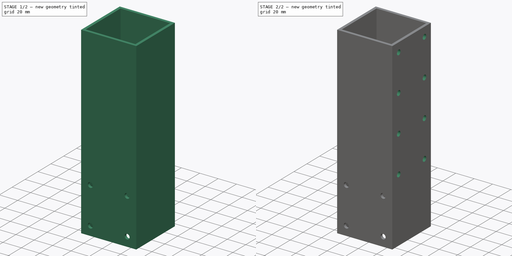
[diagram: build sequence overview — one tinted view per stage of 2, left to right]
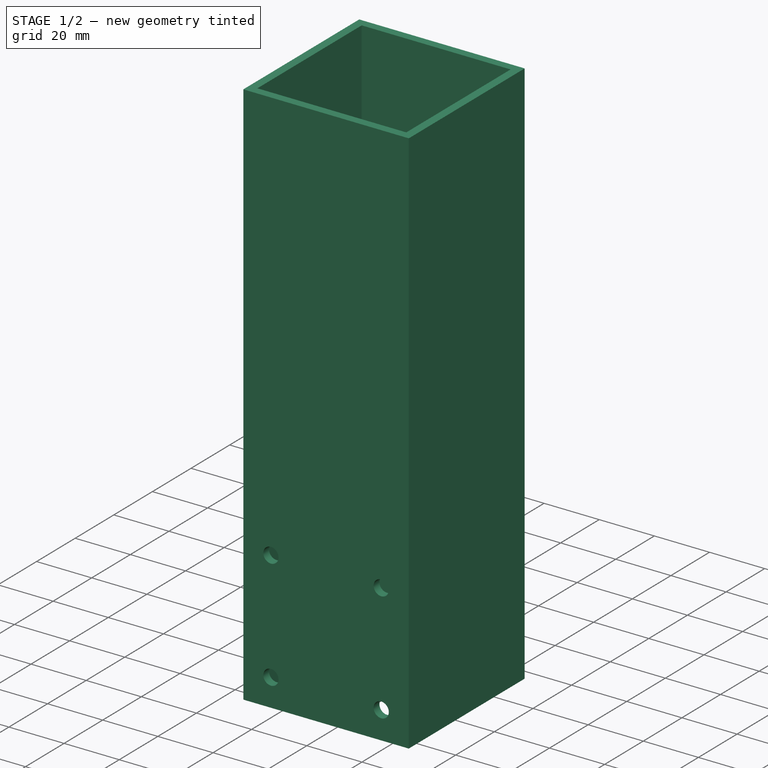
[diagram: stage 1 of 2 — iso view after this stage's code; geometry added in this stage tinted green]
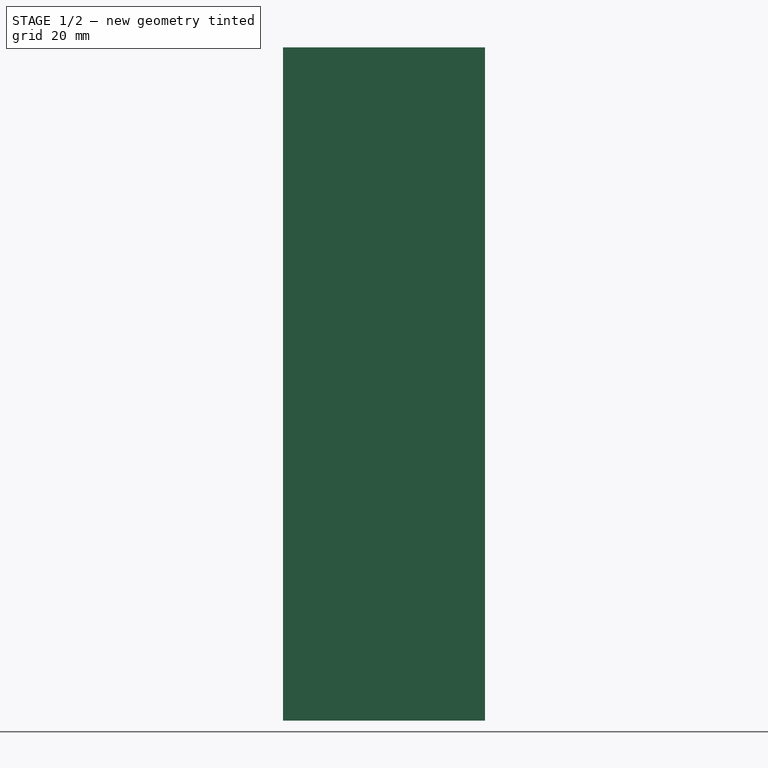
[diagram: stage 1 of 2 — front view after this stage's code; geometry added in this stage tinted green]
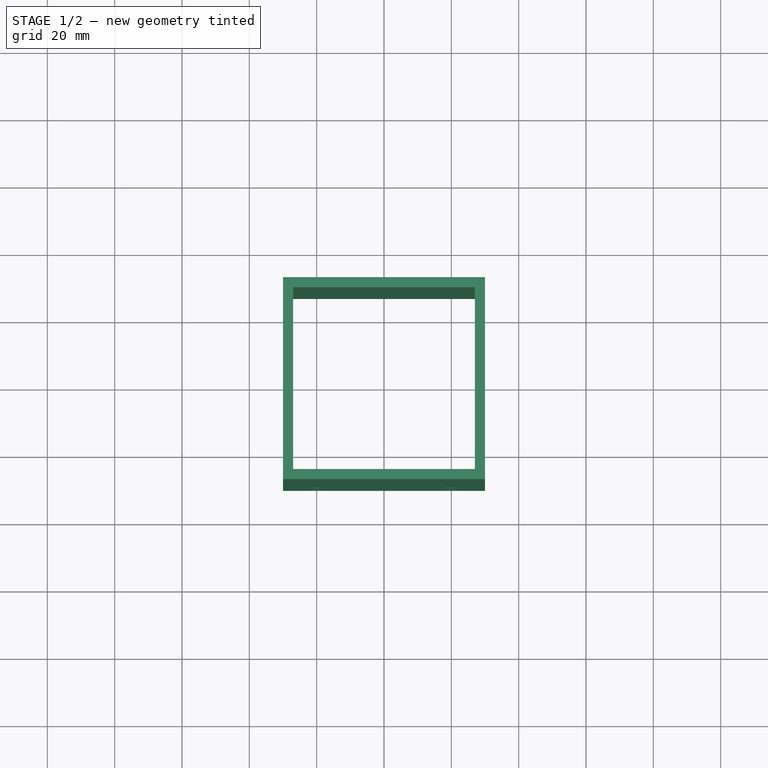
[diagram: stage 1 of 2 — top view after this stage's code; geometry added in this stage tinted green]
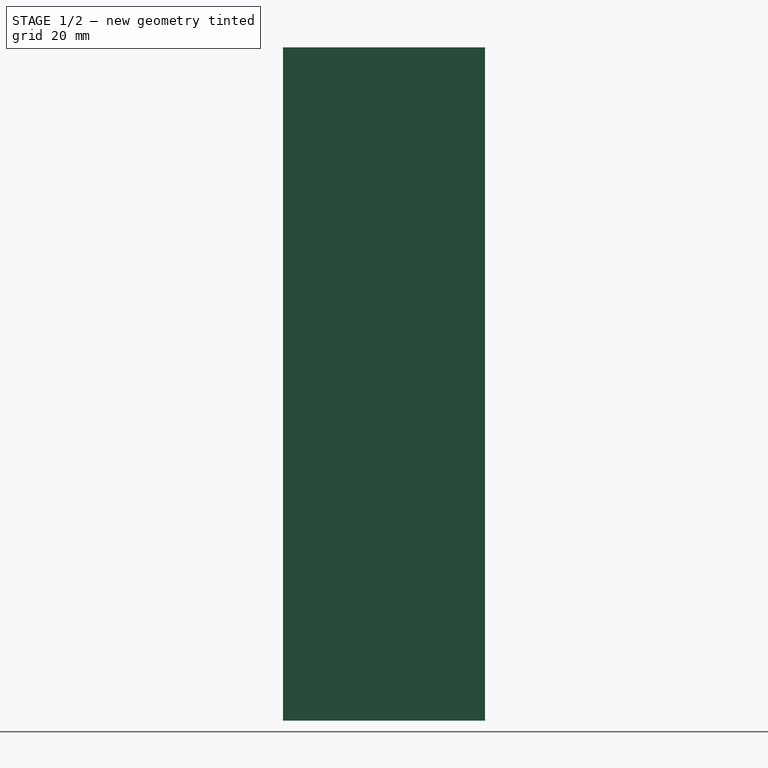
[diagram: stage 1 of 2 — right view after this stage's code; geometry added in this stage tinted green]
FCSTD DOCUMENT  (FreeCAD 0.19R)
Label: portal_column_left
License: All rights reserved
LicenseURL: http://en.wikipedia.org/wiki/All_rights_reserved
objects: PartDesign::CoordinateSystem×6, Sketcher::SketchObject×3, PartDesign::Pocket×2, PartDesign::Pad×1, PartDesign::Body×1
note: 16 computed .brp shape members not serialized (recipe doc carries the construction recipe); baked Part::Feature solids carry a one-line shape summary decoded from their .brp

FEATURE [Sketcher::SketchObject] Sketch
  FullyConstrained = true
  MapMode = 5
  Support = -> [XY_Plane]
  sketch-geometry (8):
    g0: LineSegment StartX=-30 StartY=30 StartZ=0 EndX=30 EndY=30 EndZ=0
    g1: LineSegment StartX=30 StartY=30 StartZ=0 EndX=30 EndY=-30 EndZ=0
    g2: LineSegment StartX=30 StartY=-30 StartZ=0 EndX=-30 EndY=-30 EndZ=0
    g3: LineSegment StartX=-30 StartY=-30 StartZ=0 EndX=-30 EndY=30 EndZ=0
    g4: LineSegment StartX=-27 StartY=27 StartZ=0 EndX=27 EndY=27 EndZ=0
    g5: LineSegment StartX=27 StartY=27 StartZ=0 EndX=27 EndY=-27 EndZ=0
    g6: LineSegment StartX=27 StartY=-27 StartZ=0 EndX=-27 EndY=-27 EndZ=0
    g7: LineSegment StartX=-27 StartY=-27 StartZ=0 EndX=-27 EndY=27 EndZ=0
  constraints (22):
    c: Coincident(g0,g1)
    c: Coincident(g1,g2)
    c: Coincident(g2,g3)
    c: Coincident(g3,g0)
    c: Horizontal(g2)
    c: Vertical(g1)
    c: Coincident(g4,g5)
    c: Coincident(g5,g6)
    c: Coincident(g6,g7)
    c: Coincident(g7,g4)
    c: Horizontal(g4)
    c: Horizontal(g6)
    c: Vertical(g5)
    c: Vertical(g7)
    c: Symmetric(g0,g0,g-2)
    c: Symmetric(g2,g0,g-1)
    c: DistanceY(g3,g3) = 60
    c: DistanceX(g0,g0) = 60
    c: DistanceX(g0,g4) = 3
    c: DistanceY(g4,g0) = 3
    c: DistanceY(g1,g5) = 3
    c: DistanceX(g5,g1) = 3
FEATURE [PartDesign::Pad] Pad
  Direction = (1,1,1)
  Length = 200
  Length2 = 100
  Profile = -> Sketch
  Type = 0
FEATURE [Sketcher::SketchObject] Sketch001
  FullyConstrained = true
  MapMode = 5
  Placement = pos=(0,-30,0) rot=(1,0,0;1.5708rad)
  Support = -> [Pad]
  sketch-geometry (4):
    g0: Circle CenterX=-20 CenterY=50 CenterZ=0 NormalX=0 NormalY=0 NormalZ=1 AngleXU=0 Radius=2.75
    g1: Circle CenterX=20 CenterY=50 CenterZ=0 NormalX=0 NormalY=0 NormalZ=1 AngleXU=0 Radius=2.75
    g2: Circle CenterX=-20 CenterY=10 CenterZ=0 NormalX=0 NormalY=0 NormalZ=1 AngleXU=0 Radius=2.75
    g3: Circle CenterX=20 CenterY=10 CenterZ=0 NormalX=0 NormalY=0 NormalZ=1 AngleXU=0 Radius=2.75
  constraints (10):
    c: Symmetric(g0,g1,g-2)
    c: Symmetric(g2,g3,g-2)
    c: Equal(g0,g1)
    c: Equal(g1,g2)
    c: Equal(g2,g3)
    c: Diameter(g1) = 5.5
    c: DistanceX(g0,g1) = 40
    c: DistanceX(g2,g3) = 40
    c: DistanceY(g2,g0) = 40
    c: DistanceY(g-1,g2) = 10
FEATURE [PartDesign::Pocket] Pocket
  BaseFeature = -> Pad
  Length = 3
  Length2 = 100
  Profile = -> Sketch001
  Type = 0
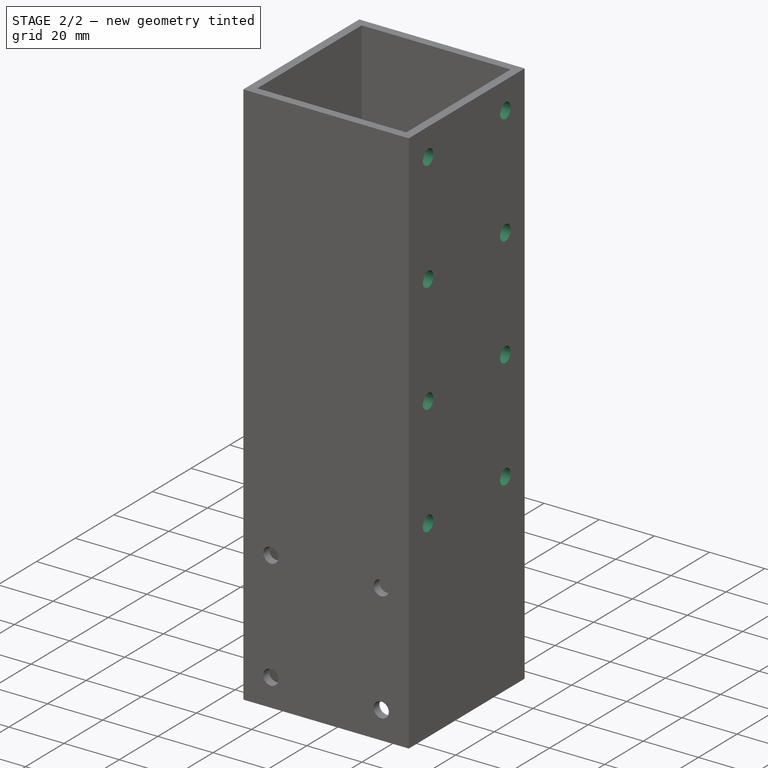
[diagram: stage 2 of 2 — iso view after this stage's code; geometry added in this stage tinted green]
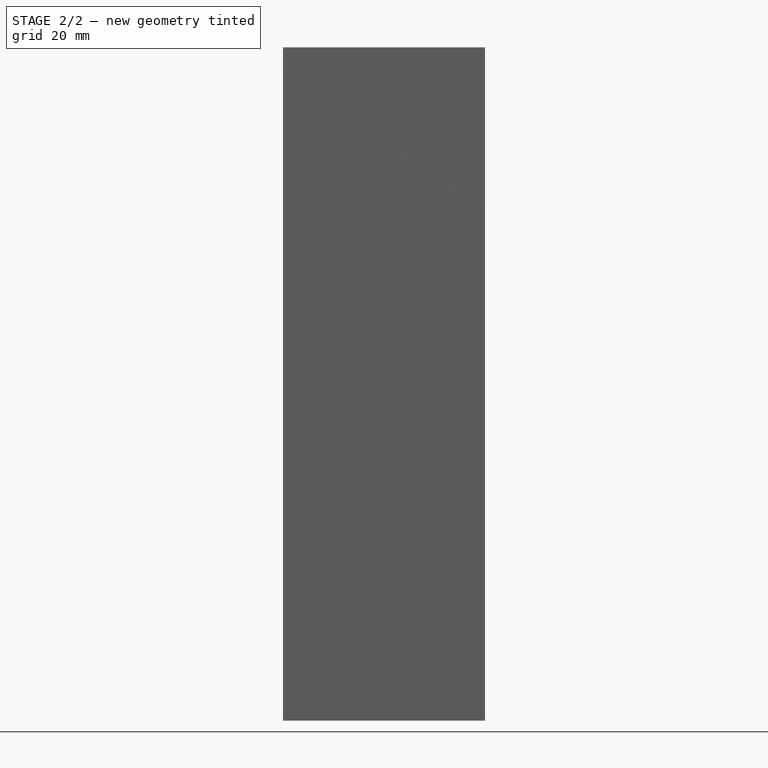
[diagram: stage 2 of 2 — front view after this stage's code; geometry added in this stage tinted green]
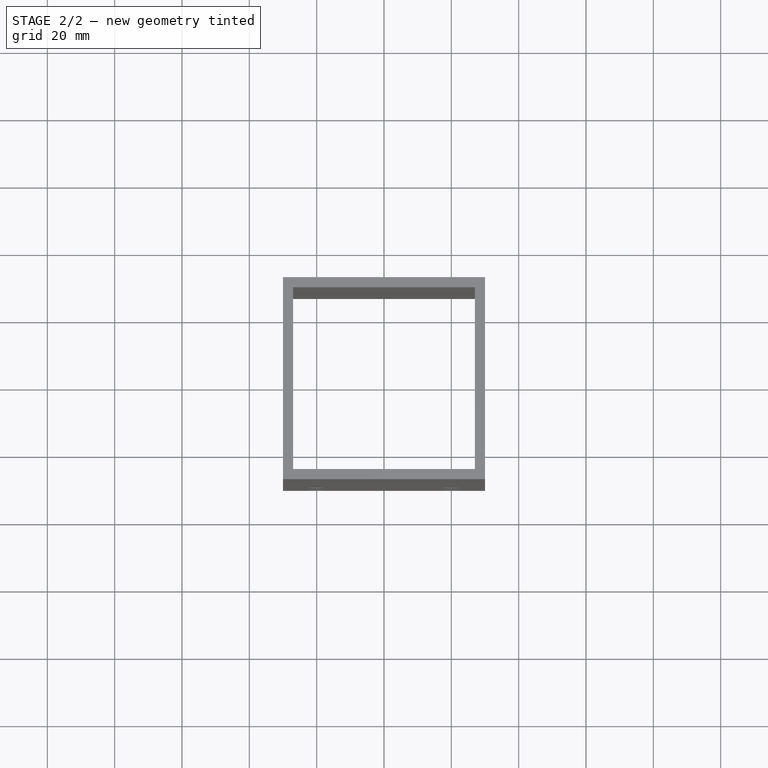
[diagram: stage 2 of 2 — top view after this stage's code; geometry added in this stage tinted green]
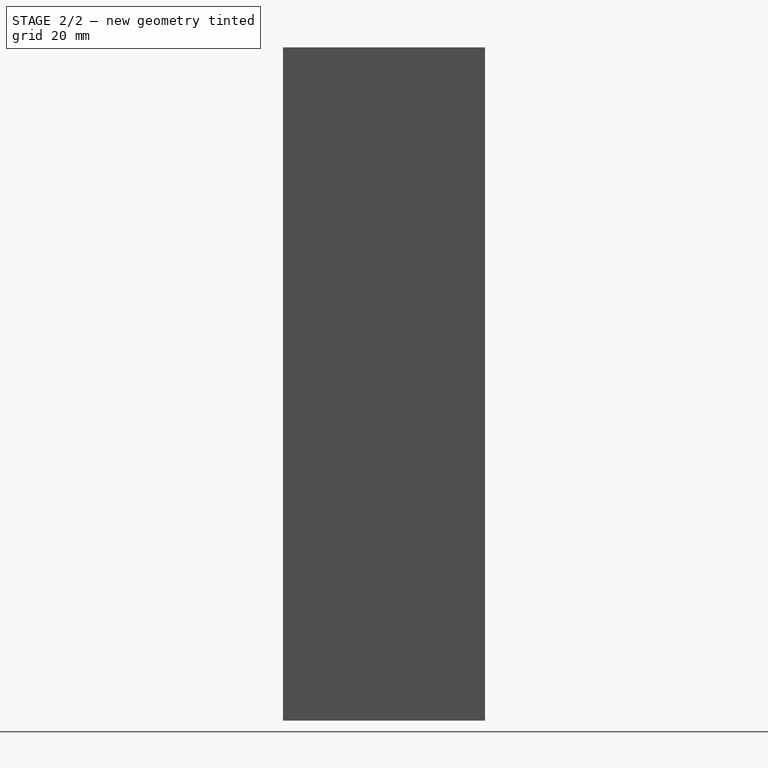
[diagram: stage 2 of 2 — right view after this stage's code; geometry added in this stage tinted green]
FEATURE [PartDesign::CoordinateSystem] LCS_h1
  AttacherType = Attacher::AttachEngine3D
  MapMode = 11
  Placement = pos=(-20,-30,10) rot=(0.57735,-0.57735,0.57735;2.0944rad)
  Support = -> [Pocket]
FEATURE [PartDesign::CoordinateSystem] LCS_h2
  AttacherType = Attacher::AttachEngine3D
  MapMode = 11
  Placement = pos=(20,-30,10) rot=(0.57735,-0.57735,0.57735;2.0944rad)
  Support = -> [Pocket]
FEATURE [Sketcher::SketchObject] Sketch002
  ExternalGeometry = -> [Pocket]
  FullyConstrained = true
  MapMode = 5
  Placement = pos=(30,0,0) rot=(0.57735,0.57735,0.57735;2.0944rad)
  Support = -> [Pocket]
  sketch-geometry (14):
    g0: Circle CenterX=-20 CenterY=190 CenterZ=0 NormalX=0 NormalY=0 NormalZ=1 AngleXU=0 Radius=2.75
    g1: Circle CenterX=20 CenterY=189.989 CenterZ=0 NormalX=0 NormalY=0 NormalZ=1 AngleXU=0 Radius=2.75
    g2: LineSegment StartX=-20 StartY=190 StartZ=0 EndX=20 EndY=189.989 EndZ=0
    g3: Circle CenterX=-20.0106 CenterY=150 CenterZ=0 NormalX=0 NormalY=0 NormalZ=1 AngleXU=0 Radius=2.75
    g4: LineSegment StartX=-20 StartY=190 StartZ=0 EndX=-20.0106 EndY=150 EndZ=0
    g5: Circle CenterX=19.9894 CenterY=149.989 CenterZ=0 NormalX=0 NormalY=0 NormalZ=1 AngleXU=0 Radius=2.75
    g6: LineSegment StartX=-20.0106 StartY=150 StartZ=0 EndX=19.9894 EndY=149.989 EndZ=0
    g7: Circle CenterX=-20 CenterY=110 CenterZ=0 NormalX=0 NormalY=0 NormalZ=1 AngleXU=0 Radius=2.75
    g8: Circle CenterX=20 CenterY=110 CenterZ=0 NormalX=0 NormalY=0 NormalZ=1 AngleXU=0 Radius=2.75
    g9: LineSegment StartX=-20 StartY=110 StartZ=0 EndX=20 EndY=110 EndZ=0
    g10: Circle CenterX=-20 CenterY=70 CenterZ=0 NormalX=0 NormalY=0 NormalZ=1 AngleXU=0 Radius=2.75
    g11: LineSegment StartX=-20 StartY=110 StartZ=0 EndX=-20 EndY=70 EndZ=0
    g12: Circle CenterX=20 CenterY=70 CenterZ=0 NormalX=0 NormalY=0 NormalZ=1 AngleXU=0 Radius=2.75
    g13: LineSegment StartX=-20 StartY=70 StartZ=0 EndX=20 EndY=70 EndZ=0
  constraints (36):
    c: Diameter(g0) = 5.5
    c: Diameter(g1) = 5.5
    c: Coincident(g0,g2)
    c: Coincident(g1,g2)
    c: Distance(g2) = 40
    c: Angle(g2) = -0.000265354
    c: Diameter(g3) = 5.5
    c: Coincident(g0,g4)
    c: Coincident(g3,g4)
    c: Equal(g4,g2)
    c: Perpendicular(g4,g2)
    c: Diameter(g5) = 5.5
    c: Coincident(g3,g6)
    c: Coincident(g5,g6)
    c: Equal(g2,g6)
    c: Parallel(g6,g2)
    c: DistanceY(g0,g-3) = 10
    c: DistanceX(g-3,g0) = 10
    c: Diameter(g7) = 5.5
    c: Diameter(g8) = 5.5
    c: Coincident(g7,g9)
    c: Coincident(g8,g9)
    c: Distance(g9) = 40
    c: Angle(g9) = 0
    c: Diameter(g10) = 5.5
    c: Coincident(g7,g11)
    c: Coincident(g10,g11)
    c: Equal(g11,g9)
    c: Perpendicular(g11,g9)
    c: Diameter(g12) = 5.5
    c: Coincident(g10,g13)
    c: Coincident(g12,g13)
    c: Equal(g9,g13)
    c: Parallel(g13,g9)
    c: DistanceX(g-3,g7) = 10
    c: DistanceY(g7,g3) = 40
FEATURE [PartDesign::Pocket] Pocket001
  BaseFeature = -> Pocket
  Length = 3
  Length2 = 100
  Profile = -> Sketch002
  Type = 0
FEATURE [PartDesign::CoordinateSystem] LCS_1
  AttacherType = Attacher::AttachEngine3D
  MapMode = 11
  Placement = pos=(30,19.9894,149.989) rot=(0.707107,0,0.707107;3.14159rad)
  Support = -> [Pocket001]
FEATURE [PartDesign::CoordinateSystem] LCS_2
  AttacherType = Attacher::AttachEngine3D
  MapMode = 11
  Placement = pos=(30,20,189.989) rot=(0.707107,0,0.707107;3.14159rad)
  Support = -> [Pocket001]
FEATURE [PartDesign::CoordinateSystem] LCS_3
  AttacherType = Attacher::AttachEngine3D
  MapMode = 11
  Placement = pos=(30,-20.0106,150) rot=(0.707107,0,0.707107;3.14159rad)
  Support = -> [Pocket001]
FEATURE [PartDesign::CoordinateSystem] LCS_4
  AttacherType = Attacher::AttachEngine3D
  MapMode = 11
  Placement = pos=(30,-20,190) rot=(0.707107,0,0.707107;3.14159rad)
  Support = -> [Pocket001]
FEATURE [PartDesign::Body] Body
  Group = -> [Sketch,Pad,Sketch001,Pocket,LCS_h1,LCS_h2,Sketch002,Pocket001,LCS_1,LCS_2,LCS_3,LCS_4]
  Origin = -> Origin
  Tip = -> Pocket001
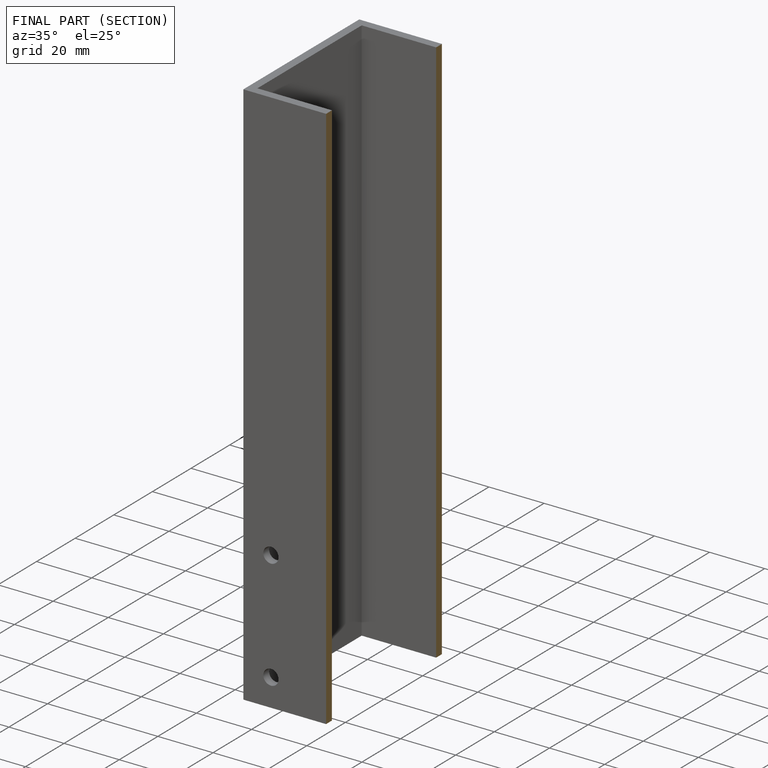
[diagram: finished part — half-section view (interior)]
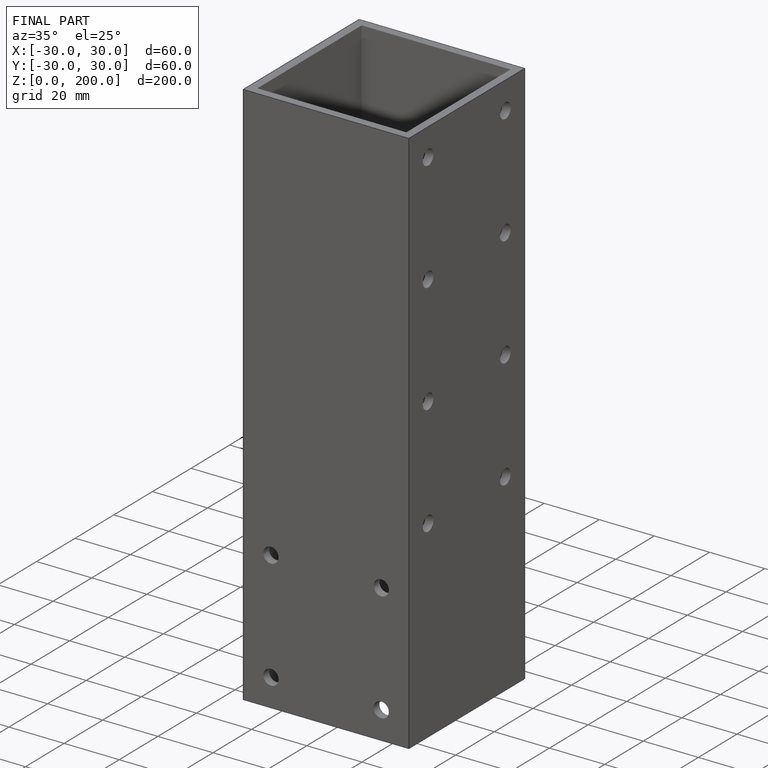
[diagram: finished part — iso view with bounding-box wireframe]
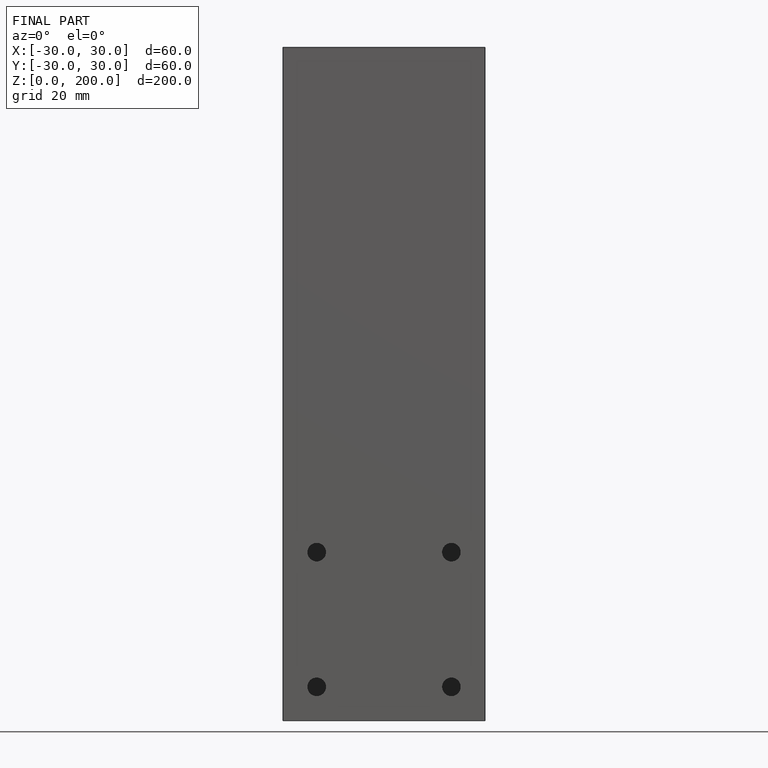
[diagram: finished part — front view with bounding-box wireframe]
